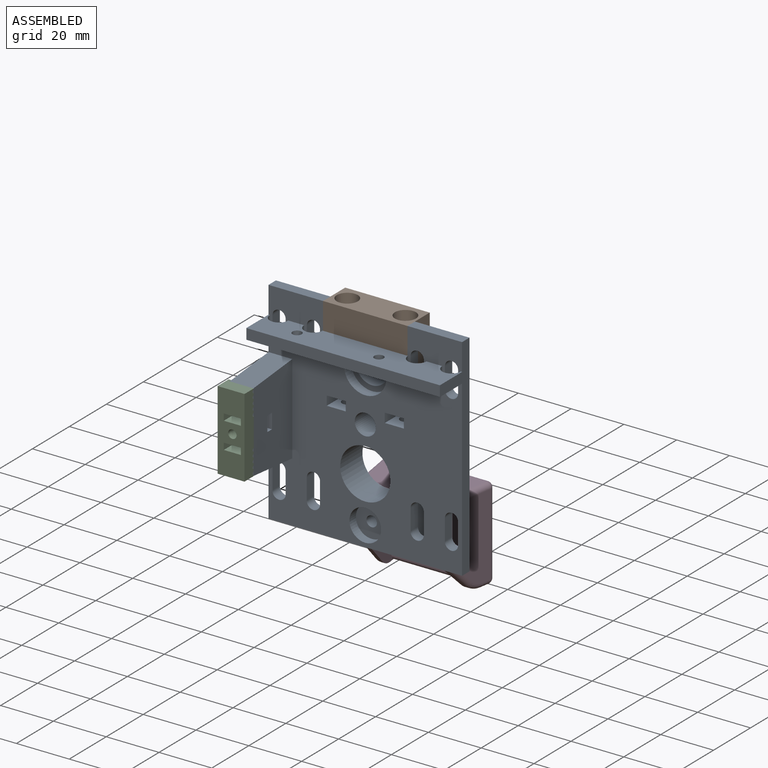
[diagram: assembled view]
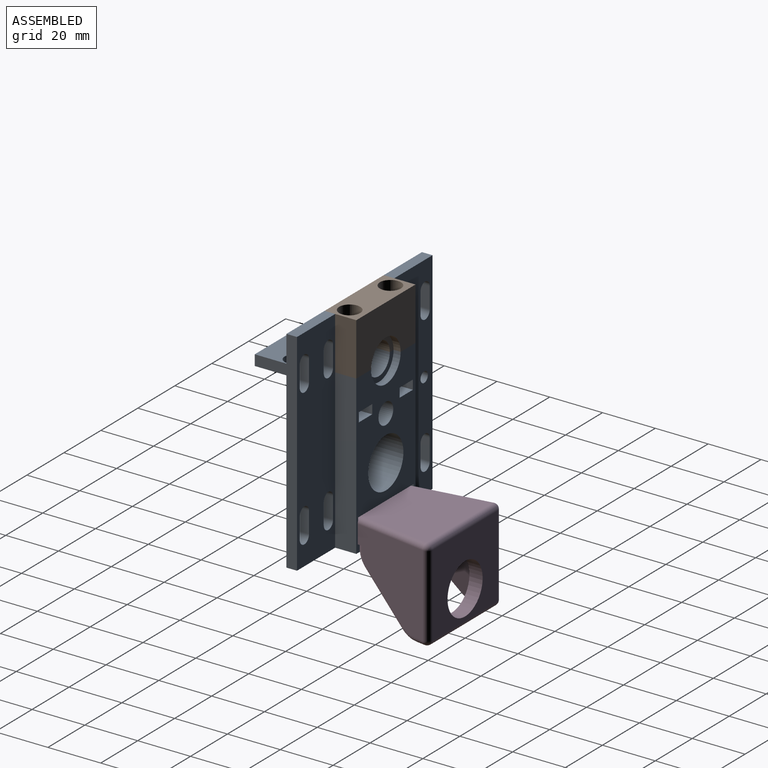
[diagram: assembled view, second angle]
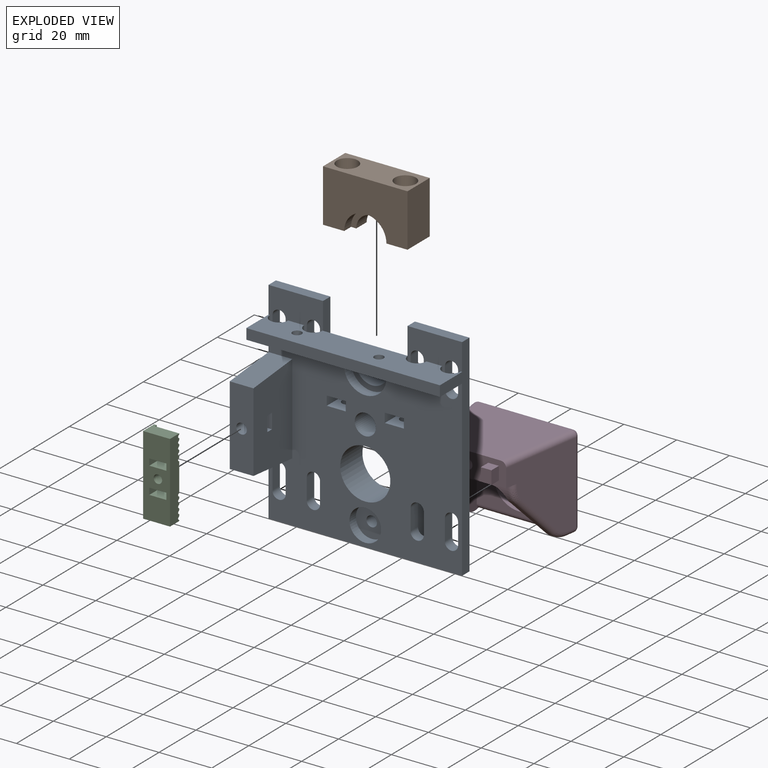
[diagram: exploded view]
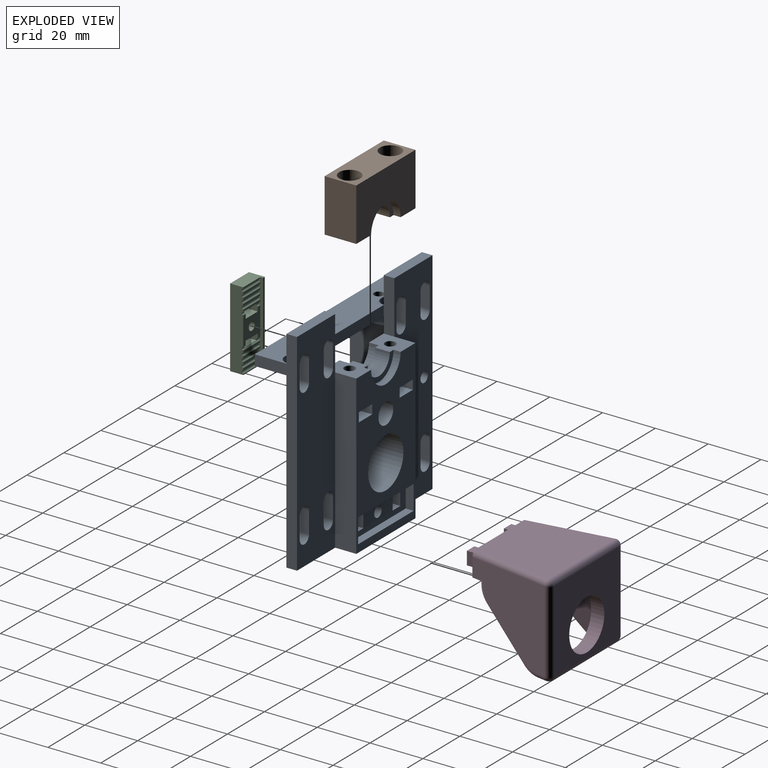
[diagram: exploded view, second angle]
ASSEMBLY  parts=4 mates=3
PART A: 106 faces, bbox 73.3x33x80 mm
  f0: plane 80x25mm, normal (1,0,0), area 1025.7mm2, adj f2,f3,f6,f10,f12,f46,f47,f97
  f1: plane 34x21mm, normal (-1,0,0), area 657.7mm2, adj f2,f97,f98,f99,f100,f101,f102,f103
  f2: plane 80x73.3mm, normal (0,-1,0), area 3789.9mm2, adj f0,f1,f3,f6,f9,f11,f12,f13
  f3: plane 73.3x12mm, normal (0,0,-1), area 783.4mm2, adj f0,f2,f11,f47,f60,f91,f92,f93
  f4: plane 30x9.2mm, normal (0,1,0), area 219.8mm2, adj f73,f74,f75,f76,f77,f78,f79,f80
  f5: plane 60x32mm, normal (0,1,0), area 1159.3mm2, adj f9,f12,f48,f49,f50,f51,f52,f53
  f6: plane 20.64x4mm, normal (0,0,-1), area 82.6mm2, adj f0,f2,f10,f66
  f7: plane 80x20.66mm, normal (0,1,0), area 1414mm2, adj f11,f12,f13,f14,f15,f16,f17,f18
  f8: cylinder r=6mm len=12mm, axis (0,-1,0), area 105.6mm2, adj f9,f55,f62,f63
  f9: plane 12x9.99mm, normal (0,0,-1), area 94.6mm2, adj f2,f5,f8,f54,f61,f62,f63,f64
  f10: plane 80x20.64mm, normal (0,1,0), area 1400.4mm2, adj f0,f6,f12,f22,f23,f24,f25,f34
  f11: plane 80x16mm, normal (-1,0,0), area 368mm2, adj f2,f3,f7,f12,f13,f46,f47
  f12: plane 73.3x12mm, normal (0,0,1), area 549.2mm2, adj f0,f2,f5,f7,f10,f11,f54,f56
  f13: plane 20.66x4mm, normal (0,0,-1), area 82.6mm2, adj f2,f7,f11,f65
  f14: plane 8x4mm, normal (1,0,0), area 32mm2, adj f2,f7,f15,f17
  f15: cylinder r=2.5mm len=5mm, axis (0,-1,0), area 31.4mm2, adj f2,f7,f14,f16
  f16: plane 8x4mm, normal (-1,0,0), area 32mm2, adj f2,f7,f15,f17
  f17: cylinder r=2.5mm len=5mm, axis (0,-1,0), area 31.4mm2, adj f2,f7,f14,f16
  f18: cylinder r=2.5mm len=5mm, axis (0,-1,0), area 31.4mm2, adj f2,f7,f19,f21
  f19: plane 8x4mm, normal (-1,0,0), area 32mm2, adj f2,f7,f18,f20
  f20: cylinder r=2.5mm len=5mm, axis (0,-1,0), area 31.4mm2, adj f2,f7,f19,f21
  f21: plane 8x4mm, normal (1,0,0), area 32mm2, adj f2,f7,f18,f20
  f22: cylinder r=2.5mm len=5mm, axis (0,-1,0), area 31.4mm2, adj f2,f10,f23,f25
  f23: plane 8x4mm, normal (-1,0,0), area 32mm2, adj f2,f10,f22,f24
  f24: cylinder r=2.5mm len=5mm, axis (0,-1,0), area 31.4mm2, adj f2,f10,f23,f25
  f25: plane 8x4mm, normal (1,0,0), area 32mm2, adj f2,f10,f22,f24
  f26: cylinder r=2.5mm len=5mm, axis (0,-1,0), area 31.4mm2, adj f2,f7,f27,f29
  f27: plane 8x4mm, normal (-1,0,0), area 32mm2, adj f2,f7,f26,f28
  f28: cylinder r=2.5mm len=5mm, axis (0,-1,0), area 31.4mm2, adj f2,f7,f27,f29
  f29: plane 8x4mm, normal (1,0,0), area 32mm2, adj f2,f7,f26,f28
  f30: cylinder r=2.5mm len=5mm, axis (0,-1,0), area 31.4mm2, adj f2,f7,f31,f33
  f31: plane 8x4mm, normal (-1,0,0), area 32mm2, adj f2,f7,f30,f32
  f32: cylinder r=2.5mm len=5mm, axis (0,-1,0), area 31.4mm2, adj f2,f7,f31,f33
  f33: plane 8x4mm, normal (1,0,0), area 32mm2, adj f2,f7,f30,f32
  f34: cylinder r=2.5mm len=5mm, axis (0,-1,0), area 31.4mm2, adj f2,f10,f35,f37
  f35: plane 8x4mm, normal (-1,0,0), area 32mm2, adj f2,f10,f34,f36
  f36: cylinder r=2.5mm len=5mm, axis (0,-1,0), area 31.4mm2, adj f2,f10,f35,f37
  f37: plane 8x4mm, normal (1,0,0), area 32mm2, adj f2,f10,f34,f36
  f38: cylinder r=2.5mm len=5mm, axis (0,-1,0), area 31.4mm2, adj f2,f10,f39,f41
  f39: plane 8x4mm, normal (-1,0,0), area 32mm2, adj f2,f10,f38,f40
  f40: cylinder r=2.5mm len=5mm, axis (0,-1,0), area 31.4mm2, adj f2,f10,f39,f41
  f41: plane 8x4mm, normal (1,0,0), area 32mm2, adj f2,f10,f38,f40
  f42: cylinder r=2.5mm len=5mm, axis (0,-1,0), area 31.4mm2, adj f2,f10,f43,f45
  f43: plane 8x4mm, normal (-1,0,0), area 32mm2, adj f2,f10,f42,f44
  f44: cylinder r=2.5mm len=5mm, axis (0,-1,0), area 31.4mm2, adj f2,f10,f43,f45
  f45: plane 8x4mm, normal (1,0,0), area 32mm2, adj f2,f10,f42,f44
  f46: plane 73.3x12mm, normal (0,0,1), area 783.4mm2, adj f0,f2,f11,f47,f60,f91,f92,f93
  f47: plane 73.3x4mm, normal (0,-1,0), area 293.2mm2, adj f0,f3,f11,f46
  f48: plane 12x7.2mm, normal (0,0,-1), area 73.8mm2, adj f2,f5,f49,f59,f71
  f49: plane 12x3.5mm, normal (-1,0,0), area 42mm2, adj f2,f5,f48,f50
  f50: plane 12x7.2mm, normal (0,0,1), area 73.8mm2, adj f2,f5,f49,f59,f70
  f51: plane 12x3.5mm, normal (1,0,0), area 42mm2, adj f2,f5,f52,f58
  f52: plane 12x7.2mm, normal (0,0,-1), area 73.8mm2, adj f2,f5,f51,f53,f69
  f53: plane 12x3.5mm, normal (-1,0,0), area 42mm2, adj f2,f5,f52,f58
  f54: plane 60x8mm, normal (-1,0,0), area 480mm2, adj f5,f7,f9,f12
  f55: plane 12x10.01mm, normal (0,0,-1), area 94.7mm2, adj f2,f5,f8,f56,f61,f62,f63,f64
  f56: plane 60x8mm, normal (1,0,0), area 480mm2, adj f5,f10,f12,f55
  f57: cylinder r=4mm len=12mm, axis (0,-1,0), area 301.6mm2, adj f2,f5
  f58: plane 12x7.2mm, normal (0,0,1), area 73.8mm2, adj f2,f5,f51,f53,f67
  f59: plane 12x3.5mm, normal (1,0,0), area 42mm2, adj f2,f5,f48,f50
  f60: plane 32x4mm, normal (0,1,0), area 128mm2, adj f3,f46,f65,f66
  f61: cylinder r=8mm len=16mm, axis (0,-1,0), area 93mm2, adj f2,f9,f55,f62
  f62: plane 16x8mm, normal (0,-1,0), area 44mm2, adj f8,f9,f55,f61
  f63: plane 16x8mm, normal (0,1,0), area 44mm2, adj f8,f9,f55,f64
  f64: cylinder r=8mm len=16mm, axis (0,-1,0), area 67.9mm2, adj f5,f9,f55,f63
  f65: plane 20x4mm, normal (1,0,0), area 80mm2, adj f2,f7,f9,f13,f60
  f66: plane 20x4mm, normal (-1,0,0), area 80mm2, adj f2,f6,f10,f55,f60
  f67: cylinder r=2mm len=12mm, axis (0,0,-1), area 150.8mm2, adj f55,f58
  f68: cone r=0mm half-angle=59deg, axis (0,0,-1), area 14.7mm2, adj f69
  f69: cylinder r=2mm len=14.5mm, axis (0,0,-1), area 182.2mm2, adj f52,f68
  f70: cylinder r=2mm len=12mm, axis (0,0,-1), area 150.8mm2, adj f9,f50
  f71: cylinder r=2mm len=14.5mm, axis (0,0,-1), area 182.2mm2, adj f48,f72
  f72: cone r=0mm half-angle=59deg, axis (0,0,-1), area 14.7mm2, adj f71
  f73: plane 30x3mm, normal (0,0,1), area 90mm2, adj f4,f5,f74,f76
  f74: plane 9.2x3mm, normal (1,0,0), area 27.6mm2, adj f4,f5,f73,f75
  f75: plane 30x3mm, normal (0,0,-1), area 90mm2, adj f4,f5,f74,f76
  f76: plane 9.2x3mm, normal (-1,0,0), area 27.6mm2, adj f4,f5,f73,f75
  f77: plane 4.2x4mm, normal (0,0,-1), area 16.8mm2, adj f4,f78,f80,f81
  f78: plane 5.2x4mm, normal (-1,0,0), area 20.8mm2, adj f4,f77,f79,f81
  f79: plane 4.2x4mm, normal (0,0,1), area 16.8mm2, adj f4,f78,f80,f81
  f80: plane 5.2x4mm, normal (1,0,0), area 20.8mm2, adj f4,f77,f79,f81
  f81: plane 5.2x4.2mm, normal (0,1,0), area 21.8mm2, adj f77,f78,f79,f80
  f82: plane 4.2x4mm, normal (0,0,1), area 16.8mm2, adj f4,f83,f85,f86
  f83: plane 5.2x4mm, normal (1,0,0), area 20.8mm2, adj f4,f82,f84,f86
  f84: plane 4.2x4mm, normal (0,0,-1), area 16.8mm2, adj f4,f83,f85,f86
  f85: plane 5.2x4mm, normal (-1,0,0), area 20.8mm2, adj f4,f82,f84,f86
  f86: plane 5.2x4.2mm, normal (0,1,0), area 21.8mm2, adj f82,f83,f84,f85
  f87: cylinder r=2mm len=5.5mm, axis (0,-1,0), area 69.1mm2, adj f4,f88
  f88: plane 12x12mm, normal (0,-1,0), area 100.5mm2, adj f87,f89
  f89: cylinder r=6mm len=12mm, axis (0,-1,0), area 131.9mm2, adj f2,f88
  f90: cylinder r=9.5mm len=19mm, axis (0,1,0), area 716.3mm2, adj f2,f5
  f91: cylinder r=1.75mm len=4mm, axis (0,0,-1), area 44mm2, adj f3,f46
  f92: cylinder r=1.75mm len=4mm, axis (0,0,-1), area 44mm2, adj f3,f46
  f93: cylinder r=3.5mm len=7mm, axis (0,0,-1), area 44mm2, adj f2,f3,f46
  f94: cylinder r=3.5mm len=7mm, axis (0,0,-1), area 44mm2, adj f2,f3,f46
  f95: cylinder r=3.5mm len=7mm, axis (0,0,-1), area 44mm2, adj f2,f3,f46
  f96: cylinder r=3.5mm len=7mm, axis (0,0,-1), area 44mm2, adj f2,f3,f46
  f97: plane 30x9mm, normal (0,-1,0), area 257.4mm2, adj f0,f1,f98,f99,f104
  f98: plane 21x9mm, normal (0,-0.09,-1), area 189.9mm2, adj f0,f1,f2,f97
  f99: plane 21x9mm, normal (0,-0.09,1), area 189.9mm2, adj f0,f1,f2,f97
  f100: plane 9x5.7mm, normal (0,-1,0), area 38.7mm2, adj f0,f1,f101,f103,f105
  f101: plane 9x2.5mm, normal (0,0,-1), area 22.5mm2, adj f0,f1,f100,f102
  f102: plane 9x5.7mm, normal (0,1,0), area 38.7mm2, adj f0,f1,f101,f103,f104
  f103: plane 9x2.5mm, normal (0,0,1), area 22.5mm2, adj f0,f1,f100,f102
  f104: cylinder r=2mm len=7.5mm, axis (0,-1,0), area 94.2mm2, adj f97,f102
  f105: cylinder r=2mm len=15mm, axis (0,-1,0), area 188.5mm2, adj f10,f100
PART B: 18 faces, bbox 32x12x20 mm
  f0: cylinder r=6mm len=12mm, axis (0,-1,0), area 105.6mm2, adj f1,f2,f9,f11
  f1: plane 12x9.99mm, normal (0,0,1), area 94.6mm2, adj f0,f3,f6,f7,f8,f9,f10,f11
  f2: plane 12x10.01mm, normal (0,0,1), area 94.7mm2, adj f0,f5,f6,f7,f8,f9,f10,f11
  f3: plane 20x12mm, normal (-1,0,0), area 240mm2, adj f1,f4,f6,f7
  f4: plane 32x12mm, normal (0,0,-1), area 283.5mm2, adj f3,f5,f6,f7,f14,f17
  f5: plane 20x12mm, normal (1,0,0), area 240mm2, adj f2,f4,f6,f7
  f6: plane 32x20mm, normal (0,1,0), area 539.5mm2, adj f1,f2,f3,f4,f5,f10
  f7: plane 32x20mm, normal (0,-1,0), area 539.5mm2, adj f1,f2,f3,f4,f5,f8
  f8: cylinder r=8mm len=16mm, axis (0,-1,0), area 93mm2, adj f1,f2,f7,f9
  f9: plane 16x8mm, normal (0,-1,0), area 44mm2, adj f0,f1,f2,f8
  f10: cylinder r=8mm len=16mm, axis (0,-1,0), area 67.9mm2, adj f1,f2,f6,f11
  f11: plane 16x8mm, normal (0,1,0), area 44mm2, adj f0,f1,f2,f10
  f12: cylinder r=2mm len=15mm, axis (0,0,-1), area 188.5mm2, adj f2,f13
  f13: plane 8x8mm, normal (0,0,-1), area 37.7mm2, adj f12,f14
  f14: cylinder r=4mm len=8mm, axis (0,0,-1), area 125.7mm2, adj f4,f13
  f15: cylinder r=2mm len=15mm, axis (0,0,-1), area 188.5mm2, adj f1,f16
  f16: plane 8x8mm, normal (0,0,-1), area 37.7mm2, adj f15,f17
  f17: cylinder r=4mm len=8mm, axis (0,0,-1), area 125.7mm2, adj f4,f16
PART C: 55 faces, bbox 10.2x6x30 mm
  f0: plane 30x10.2mm, normal (0,1,0), area 265.5mm2, adj f6,f7,f24,f25,f26,f27,f28,f29
  f1: plane 9.2x0.45mm, normal (0,-1,0), area 4.2mm2, adj f24,f34,f37,f54
  f2: cylinder r=0.56mm len=9.2mm, axis (-1,0,0), area 13.1mm2, adj f24,f34,f37,f38
  f3: plane 9.2x0.45mm, normal (0,-1,0), area 4.2mm2, adj f24,f34,f38,f39
  f4: cylinder r=0.56mm len=9.2mm, axis (-1,0,0), area 13.1mm2, adj f24,f34,f39,f40
  f5: plane 9.2x0.23mm, normal (0,-1,0), area 2.1mm2, adj f6,f24,f34,f40
  f6: plane 10.2x6mm, normal (0,0,-1), area 51.9mm2, adj f0,f5,f24,f34,f35,f36
  f7: plane 10.2x6mm, normal (0,0,1), area 51.9mm2, adj f0,f8,f24,f34,f35,f36
  f8: plane 9.2x0.23mm, normal (0,-1,0), area 2.1mm2, adj f7,f24,f34,f41
  f9: cylinder r=0.56mm len=9.2mm, axis (-1,0,0), area 13.1mm2, adj f24,f34,f41,f42
  f10: plane 9.2x0.45mm, normal (0,-1,0), area 4.2mm2, adj f24,f34,f42,f43
  f11: cylinder r=0.56mm len=9.2mm, axis (-1,0,0), area 13.1mm2, adj f24,f34,f43,f44
  f12: plane 9.2x0.45mm, normal (0,-1,0), area 4.2mm2, adj f24,f34,f44,f45
  f13: cylinder r=0.56mm len=9.2mm, axis (-1,0,0), area 13.1mm2, adj f24,f34,f45,f46
  f14: plane 9.2x0.45mm, normal (0,-1,0), area 4.2mm2, adj f24,f34,f46,f47
  f15: cylinder r=0.56mm len=9.2mm, axis (-1,0,0), area 13.1mm2, adj f24,f34,f47,f48
  f16: plane 9.2x0.45mm, normal (0,-1,0), area 4.2mm2, adj f24,f34,f48,f49
  f17: cylinder r=0.56mm len=9.2mm, axis (-1,0,0), area 7.3mm2, adj f18,f24,f29,f30,f32,f34,f49
  f18: plane 10.89x9.2mm, normal (0,-1,0), area 70.1mm2, adj f17,f19,f24,f25,f26,f28,f30,f31
  f19: cylinder r=0.56mm len=9.2mm, axis (-1,0,0), area 7.3mm2, adj f18,f24,f26,f27,f28,f34,f50
  f20: plane 9.2x0.45mm, normal (0,-1,0), area 4.2mm2, adj f24,f34,f50,f51
  f21: cylinder r=0.56mm len=9.2mm, axis (-1,0,0), area 13.1mm2, adj f24,f34,f51,f52
  f22: plane 9.2x0.45mm, normal (0,-1,0), area 4.2mm2, adj f24,f34,f52,f53
  f23: cylinder r=0.56mm len=9.2mm, axis (-1,0,0), area 13.1mm2, adj f24,f34,f53,f54
  f24: plane 30x4.99mm, normal (1,0,0), area 144.4mm2, adj f0,f1,f2,f3,f4,f5,f6,f7
  f25: plane 6.5x4.99mm, normal (0,0,-1), area 32.4mm2, adj f0,f18,f26,f28
  f26: plane 4.99x2.5mm, normal (-1,0,0), area 12.1mm2, adj f0,f18,f19,f25,f27
  f27: plane 6.5x4.47mm, normal (0,0,1), area 29mm2, adj f0,f19,f26,f28
  f28: plane 4.99x2.5mm, normal (1,0,0), area 12.1mm2, adj f0,f18,f19,f25,f27
  f29: plane 6.5x4.47mm, normal (0,0,-1), area 29.1mm2, adj f0,f17,f30,f32
  f30: plane 4.99x2.5mm, normal (-1,0,0), area 12.1mm2, adj f0,f17,f18,f29,f31
  f31: plane 6.5x4.99mm, normal (0,0,1), area 32.4mm2, adj f0,f18,f30,f32
  f32: plane 4.99x2.5mm, normal (1,0,0), area 12.1mm2, adj f0,f17,f18,f29,f31
  f33: cylinder r=1.6mm len=4.99mm, axis (0,1,0), area 50.2mm2, adj f0,f18
  f34: plane 30x1.59mm, normal (1,0,0), area 35.6mm2, adj f1,f2,f3,f4,f5,f6,f7,f8
  f35: plane 30x1mm, normal (0,-1,0), area 30mm2, adj f6,f7,f34,f36
  f36: plane 30x6mm, normal (-1,0,0), area 180mm2, adj f0,f6,f7,f35
  f37: cylinder r=0.25mm len=9.2mm, axis (-1,0,0), area 3mm2, adj f1,f2,f24,f34
  f38: cylinder r=0.25mm len=9.2mm, axis (-1,0,0), area 3mm2, adj f2,f3,f24,f34
  f39: cylinder r=0.25mm len=9.2mm, axis (-1,0,0), area 3mm2, adj f3,f4,f24,f34
  f40: cylinder r=0.25mm len=9.2mm, axis (-1,0,0), area 3mm2, adj f4,f5,f24,f34
  f41: cylinder r=0.25mm len=9.2mm, axis (-1,0,0), area 3mm2, adj f8,f9,f24,f34
  f42: cylinder r=0.25mm len=9.2mm, axis (-1,0,0), area 3mm2, adj f9,f10,f24,f34
  f43: cylinder r=0.25mm len=9.2mm, axis (-1,0,0), area 3mm2, adj f10,f11,f24,f34
  f44: cylinder r=0.25mm len=9.2mm, axis (-1,0,0), area 3mm2, adj f11,f12,f24,f34
  f45: cylinder r=0.25mm len=9.2mm, axis (-1,0,0), area 3mm2, adj f12,f13,f24,f34
  f46: cylinder r=0.25mm len=9.2mm, axis (-1,0,0), area 3mm2, adj f13,f14,f24,f34
  f47: cylinder r=0.25mm len=9.2mm, axis (-1,0,0), area 3mm2, adj f14,f15,f24,f34
  f48: cylinder r=0.25mm len=9.2mm, axis (-1,0,0), area 3mm2, adj f15,f16,f24,f34
  f49: cylinder r=0.25mm len=9.2mm, axis (-1,0,0), area 3mm2, adj f16,f17,f24,f34
  f50: cylinder r=0.25mm len=9.2mm, axis (-1,0,0), area 3mm2, adj f19,f20,f24,f34
  f51: cylinder r=0.25mm len=9.2mm, axis (-1,0,0), area 3mm2, adj f20,f21,f24,f34
  f52: cylinder r=0.25mm len=9.2mm, axis (-1,0,0), area 3mm2, adj f21,f22,f24,f34
  f53: cylinder r=0.25mm len=9.2mm, axis (-1,0,0), area 3mm2, adj f22,f23,f24,f34
  f54: cylinder r=0.25mm len=9.2mm, axis (-1,0,0), area 3mm2, adj f1,f23,f24,f34
PART D: 54 faces, bbox 39.3x37x35 mm
  f0: plane 4x4mm, normal (0,0,-1), area 16mm2, adj f1,f3,f4,f12
  f1: plane 5x4mm, normal (1,0,0), area 20mm2, adj f0,f2,f4,f12
  f2: plane 4x4mm, normal (0,0,1), area 16mm2, adj f1,f3,f4,f12
  f3: plane 5x4mm, normal (-1,0,0), area 20mm2, adj f0,f2,f4,f12
  f4: plane 5x4mm, normal (0,1,0), area 20mm2, adj f0,f1,f2,f3
  f5: plane 4x4mm, normal (0,0,-1), area 16mm2, adj f6,f8,f9,f12
  f6: plane 5x4mm, normal (1,0,0), area 20mm2, adj f5,f7,f9,f12
  f7: plane 4x4mm, normal (0,0,1), area 16mm2, adj f6,f8,f9,f12
  f8: plane 5x4mm, normal (-1,0,0), area 20mm2, adj f5,f7,f9,f12
  f9: plane 5x4mm, normal (0,1,0), area 20mm2, adj f5,f6,f7,f8
  f10: plane 35.32x31mm, normal (0,0,1), area 942.6mm2, adj f12,f31,f35,f36
  f11: plane 28.74x4.69mm, normal (0,0,-1), area 84.6mm2, adj f12,f13,f20,f28,f48
  f12: plane 29.55x9mm, normal (0,1,0), area 210.7mm2, adj f0,f1,f2,f3,f5,f6,f7,f8
  f13: plane 27.08x1.51mm, normal (0,1,0), area 40.1mm2, adj f11,f25,f28,f29,f48
  f14: plane 35.32x3.48mm, normal (0,0,-1), area 41.2mm2, adj f16,f17,f26,f27,f38,f42,f44,f49
  f15: plane 35.32x31mm, normal (0,-1,0), area 811.3mm2, adj f22,f36,f37,f41,f42
  f16: plane 26.2x25.36mm, normal (-0.99,-0.16,0), area 349.8mm2, adj f14,f19,f23,f25,f26,f49,f51
  f17: plane 26.2x25.36mm, normal (0.99,-0.16,0), area 349.8mm2, adj f14,f19,f24,f25,f27,f49,f50
  f18: plane 24.98x22.23mm, normal (0,-0.28,-0.96), area 475mm2, adj f19,f25,f50,f51
  f19: plane 31.92x29.17mm, normal (0,1,0), area 637.3mm2, adj f16,f17,f18,f22,f49,f50,f51
  f20: plane 31x30.69mm, normal (-0.99,0.16,0), area 648.4mm2, adj f11,f12,f35,f41,f44,f45,f46,f47
  f21: plane 31x30.69mm, normal (0.99,0.16,0), area 638.9mm2, adj f12,f28,f29,f30,f31,f32,f34,f37
  f22: cylinder r=9.5mm len=19mm, axis (0,1,0), area 298.5mm2, adj f15,f19
  f23: plane 16.02x16.02mm, normal (0,0.71,-0.71), area 32.8mm2, adj f16,f25,f26,f32
  f24: plane 16.02x16.02mm, normal (0,0.71,-0.71), area 32.8mm2, adj f17,f25,f27,f46
  f25: cylinder r=8.5mm len=27.68mm, axis (-1,0,0), area 42.4mm2, adj f13,f16,f17,f18,f23,f24,f30,f47
  f26: cylinder r=8.5mm len=6.01mm, axis (1,0,0), area 9mm2, adj f14,f16,f23,f34
  f27: cylinder r=8.5mm len=6.01mm, axis (1,0,0), area 9mm2, adj f14,f17,f24,f45
  f28: cylinder r=2mm len=5.31mm, axis (0.16,-0.99,0), area 11.3mm2, adj f11,f12,f13,f21,f29
  f29: cylinder r=2mm len=3.48mm, axis (0,0,1), area 6.5mm2, adj f13,f21,f28,f30
  f30: bspline ~6.01x3.59mm, area 17.3mm2, adj f21,f25,f29,f32
  f31: cylinder r=2mm len=31.31mm, axis (-0.16,0.99,0), area 98mm2, adj f10,f12,f21,f33
  f32: cylinder r=2mm len=17.44mm, axis (0.11,-0.7,-0.7), area 66.6mm2, adj f21,f23,f30,f34
  f33: sphere r=2mm, area 6.9mm2, adj f31,f36,f37
  f34: bspline ~8.53x4.78mm, area 18.5mm2, adj f21,f26,f32,f38
  f35: cylinder r=2mm len=31.31mm, axis (0.16,0.99,0), area 98mm2, adj f10,f12,f20,f39
  f36: cylinder r=2mm len=35.32mm, axis (1,0,0), area 111mm2, adj f10,f15,f33,f39
  f37: cylinder r=2mm len=31mm, axis (0,0,-1), area 107.1mm2, adj f15,f21,f33,f40
  f38: cylinder r=2mm len=3.79mm, axis (0.16,-0.99,0), area 11.1mm2, adj f14,f21,f34,f40
  f39: sphere r=2mm, area 6.9mm2, adj f35,f36,f41
  f40: sphere r=2mm, area 6.9mm2, adj f37,f38,f42
  f41: cylinder r=2mm len=31mm, axis (0,0,-1), area 107.1mm2, adj f15,f20,f39,f43
  f42: cylinder r=2mm len=35.32mm, axis (-1,0,0), area 111mm2, adj f14,f15,f40,f43
  f43: sphere r=2mm, area 6.9mm2, adj f41,f42,f44
  f44: cylinder r=2mm len=3.79mm, axis (-0.16,-0.99,0), area 11.1mm2, adj f14,f20,f43,f45
  f45: bspline ~6.01x3.9mm, area 18.5mm2, adj f20,f27,f44,f46
  f46: cylinder r=2mm len=17.44mm, axis (0.11,0.7,0.7), area 66.6mm2, adj f20,f24,f45,f47
  f47: bspline ~6.01x3.59mm, area 17.3mm2, adj f20,f25,f46,f48
  f48: cylinder r=2mm len=1.98mm, axis (0,0,1), area 4.2mm2, adj f11,f13,f20,f47
  f49: cylinder r=2mm len=32.55mm, axis (-1,0,0), area 101mm2, adj f14,f16,f17,f19
  f50: cylinder r=5mm len=25.94mm, axis (-0.15,-0.95,0.27), area 197.5mm2, adj f17,f18,f19,f25
  f51: cylinder r=5mm len=25.94mm, axis (0.15,-0.95,0.27), area 197.5mm2, adj f16,f18,f19,f25
  f52: cone r=0mm half-angle=59deg, axis (0,1,0), area 14.7mm2, adj f53
  f53: cylinder r=2mm len=15mm, axis (0,1,0), area 188.5mm2, adj f12,f52
PLACE A rot(axis=(0,1,0),180deg) t=(-49.51,10.03,187.68)mm
PLACE B rot(axis=(0,1,0),180deg) t=(-49.51,10.03,187.68)mm
PLACE C rot(axis=(1,0,0),180deg) t=(-59.76,5.33,91.48)mm
PLACE D rot(axis=(0,0,1),180deg) t=(14.98,0.88,151.54)mm
MATE fastened B.f15 <-> A.f70  axis (0,0,-1) through (-12.02,1.88,167.68)mm
MATE fastened D.f52 <-> A.f87  axis (0,-1,0) through (-23.02,4.88,115.18)mm
MATE fastened C.f33 <-> A.f104  axis (0,-1,0) through (-55.16,-25.12,147.68)mm
